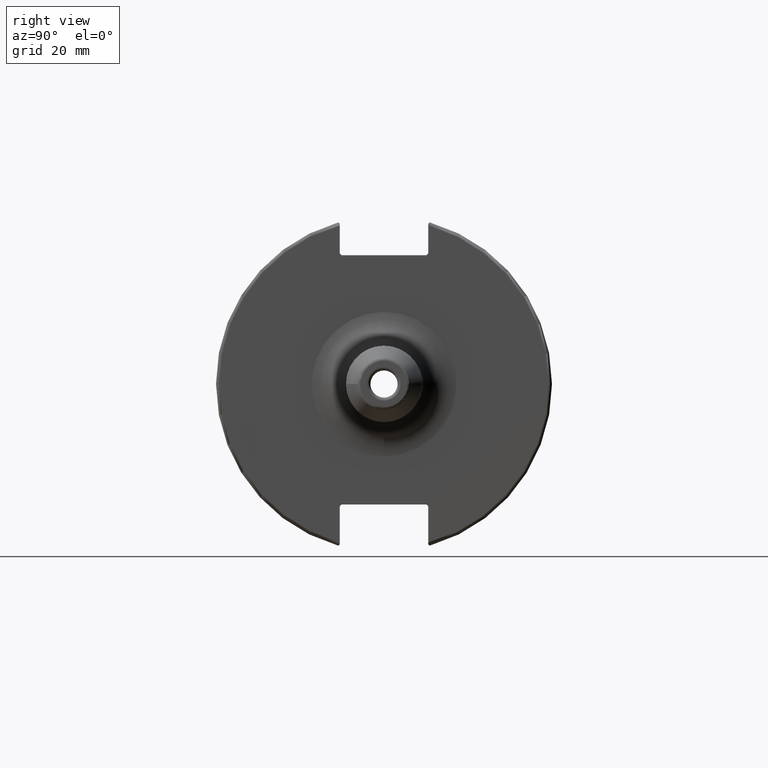
[diagram: clean part render]
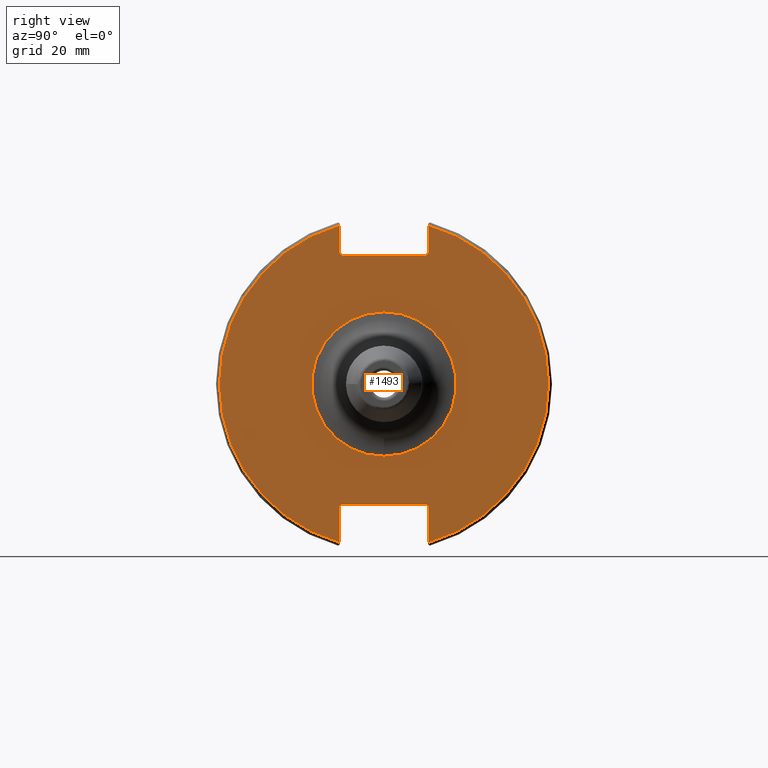
[diagram: same view with one face highlighted and labeled with its STEP entity id]
A machine part, right view. The second image highlights one B-rep face of the part: STEP entity #1493.
In plain terms, the highlighted planar face has unit normal (1, 0, 0).
Its self-contained STEP definition (entity closure, byte-faithful):
#73=FACE_BOUND('',#228,.T.);
#92=PLANE('',#1623);
#137=FACE_OUTER_BOUND('',#227,.T.);
#227=EDGE_LOOP('',(#1065,#1066,#1067,#1068,#1069,#1070,#1071,#1072,#1073,
#1074,#1075,#1076));
#228=EDGE_LOOP('',(#1077));
#366=LINE('',#2327,#458);
#367=LINE('',#2329,#459);
#368=LINE('',#2331,#460);
#369=LINE('',#2333,#461);
#370=LINE('',#2335,#462);
#371=LINE('',#2339,#463);
#372=LINE('',#2341,#464);
#373=LINE('',#2343,#465);
#374=LINE('',#2345,#466);
#375=LINE('',#2346,#467);
#458=VECTOR('',#1832,10.);
#459=VECTOR('',#1833,10.);
#460=VECTOR('',#1834,10.);
#461=VECTOR('',#1835,10.);
#462=VECTOR('',#1836,10.);
#463=VECTOR('',#1839,10.);
#464=VECTOR('',#1840,10.);
#465=VECTOR('',#1841,10.);
#466=VECTOR('',#1842,10.);
#467=VECTOR('',#1843,10.);
#565=CIRCLE('',#1622,21.176);
#566=CIRCLE('',#1624,48.2125);
#567=CIRCLE('',#1625,48.2125);
#643=VERTEX_POINT('',#2319);
#644=VERTEX_POINT('',#2323);
#645=VERTEX_POINT('',#2324);
#646=VERTEX_POINT('',#2326);
#647=VERTEX_POINT('',#2328);
#648=VERTEX_POINT('',#2330);
#649=VERTEX_POINT('',#2332);
#650=VERTEX_POINT('',#2334);
#651=VERTEX_POINT('',#2336);
#652=VERTEX_POINT('',#2338);
#653=VERTEX_POINT('',#2340);
#654=VERTEX_POINT('',#2342);
#655=VERTEX_POINT('',#2344);
#807=EDGE_CURVE('',#643,#643,#565,.T.);
#808=EDGE_CURVE('',#644,#645,#566,.T.);
#809=EDGE_CURVE('',#644,#646,#366,.T.);
#810=EDGE_CURVE('',#647,#646,#367,.T.);
#811=EDGE_CURVE('',#647,#648,#368,.T.);
#812=EDGE_CURVE('',#649,#648,#369,.T.);
#813=EDGE_CURVE('',#649,#650,#370,.T.);
#814=EDGE_CURVE('',#651,#650,#567,.T.);
#815=EDGE_CURVE('',#651,#652,#371,.T.);
#816=EDGE_CURVE('',#653,#652,#372,.T.);
#817=EDGE_CURVE('',#653,#654,#373,.T.);
#818=EDGE_CURVE('',#655,#654,#374,.T.);
#819=EDGE_CURVE('',#655,#645,#375,.T.);
#1065=ORIENTED_EDGE('',*,*,#808,.F.);
#1066=ORIENTED_EDGE('',*,*,#809,.T.);
#1067=ORIENTED_EDGE('',*,*,#810,.F.);
#1068=ORIENTED_EDGE('',*,*,#811,.T.);
#1069=ORIENTED_EDGE('',*,*,#812,.F.);
#1070=ORIENTED_EDGE('',*,*,#813,.T.);
#1071=ORIENTED_EDGE('',*,*,#814,.F.);
#1072=ORIENTED_EDGE('',*,*,#815,.T.);
#1073=ORIENTED_EDGE('',*,*,#816,.F.);
#1074=ORIENTED_EDGE('',*,*,#817,.T.);
#1075=ORIENTED_EDGE('',*,*,#818,.F.);
#1076=ORIENTED_EDGE('',*,*,#819,.T.);
#1077=ORIENTED_EDGE('',*,*,#807,.F.);
#1493=ADVANCED_FACE('',(#137,#73),#92,.T.);
#1622=AXIS2_PLACEMENT_3D('',#2321,#1826,#1827);
#1623=AXIS2_PLACEMENT_3D('',#2322,#1828,#1829);
#1624=AXIS2_PLACEMENT_3D('',#2325,#1830,#1831);
#1625=AXIS2_PLACEMENT_3D('',#2337,#1837,#1838);
#1826=DIRECTION('center_axis',(1.,0.,0.));
#1827=DIRECTION('ref_axis',(0.,-1.,-1.22464679914735E-16));
#1828=DIRECTION('center_axis',(1.,0.,0.));
#1829=DIRECTION('ref_axis',(0.,0.,-1.));
#1830=DIRECTION('center_axis',(-1.,0.,0.));
#1831=DIRECTION('ref_axis',(0.,1.,-6.12323399573677E-17));
#1832=DIRECTION('',(0.,0.,-1.));
#1833=DIRECTION('',(0.,0.707106781186549,0.707106781186546));
#1834=DIRECTION('',(0.,-1.,0.));
#1835=DIRECTION('',(0.,0.707106781186549,-0.707106781186546));
#1836=DIRECTION('',(0.,0.,1.));
#1837=DIRECTION('center_axis',(-1.,0.,0.));
#1838=DIRECTION('ref_axis',(0.,-1.,1.60812264967664E-16));
#1839=DIRECTION('',(0.,0.,1.));
#1840=DIRECTION('',(0.,-0.707106781186549,-0.707106781186546));
#1841=DIRECTION('',(0.,1.,0.));
#1842=DIRECTION('',(0.,-0.707106781186549,0.707106781186546));
#1843=DIRECTION('',(0.,0.,-1.));
#2319=CARTESIAN_POINT('',(19.05,-2.59331206187444E-15,-21.176));
#2321=CARTESIAN_POINT('Origin',(19.05,0.,0.));
#2322=CARTESIAN_POINT('Origin',(19.05,0.,0.));
#2323=CARTESIAN_POINT('',(19.05,12.95,46.4407434937254));
#2324=CARTESIAN_POINT('',(19.05,12.95,-46.4407434937254));
#2325=CARTESIAN_POINT('Origin',(19.05,0.,0.));
#2326=CARTESIAN_POINT('',(19.05,12.95,38.219));
#2327=CARTESIAN_POINT('',(19.05,12.95,18.8595));
#2328=CARTESIAN_POINT('',(19.05,12.45,37.719));
#2329=CARTESIAN_POINT('',(19.05,0.0327499999999836,25.30175));
#2330=CARTESIAN_POINT('',(19.05,-12.45,37.719));
#2331=CARTESIAN_POINT('',(19.05,0.,37.719));
#2332=CARTESIAN_POINT('',(19.05,-12.95,38.219));
#2333=CARTESIAN_POINT('',(19.05,-0.0327499999999817,25.30175));
#2334=CARTESIAN_POINT('',(19.05,-12.95,46.4407434937254));
#2335=CARTESIAN_POINT('',(19.05,-12.95,18.8595));
#2336=CARTESIAN_POINT('',(19.05,-12.95,-46.4407434937254));
#2337=CARTESIAN_POINT('Origin',(19.05,0.,0.));
#2338=CARTESIAN_POINT('',(19.05,-12.95,-35.806));
#2339=CARTESIAN_POINT('',(19.05,-12.95,-17.653));
#2340=CARTESIAN_POINT('',(19.05,-12.45,-35.306));
#2341=CARTESIAN_POINT('',(19.05,-0.635999999999989,-23.492));
#2342=CARTESIAN_POINT('',(19.05,12.45,-35.306));
#2343=CARTESIAN_POINT('',(19.05,-3.33066907387547E-15,-35.306));
#2344=CARTESIAN_POINT('',(19.05,12.95,-35.806));
#2345=CARTESIAN_POINT('',(19.05,0.635999999999982,-23.492));
#2346=CARTESIAN_POINT('',(19.05,12.95,-17.653));